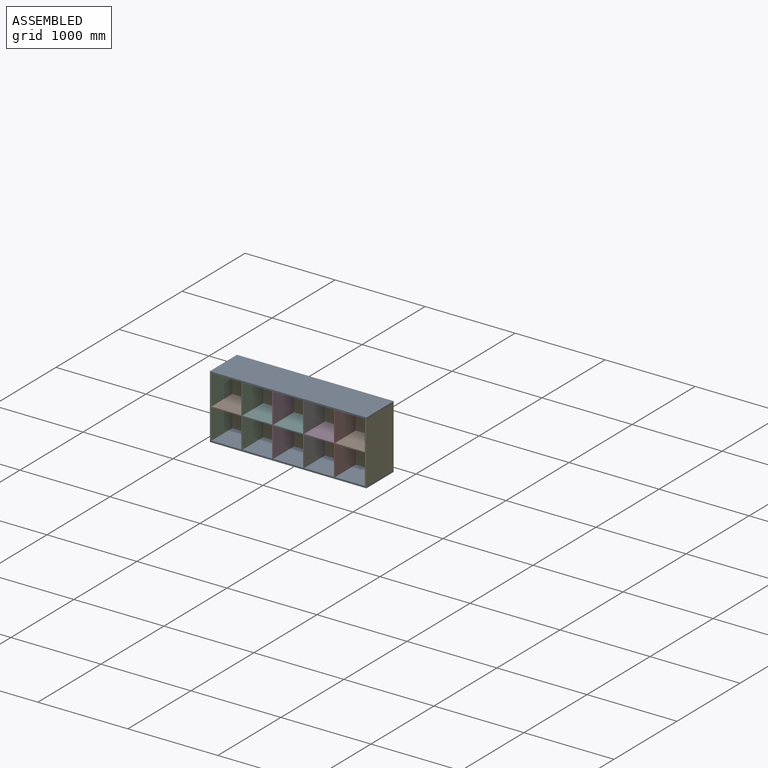
[diagram: assembled view]
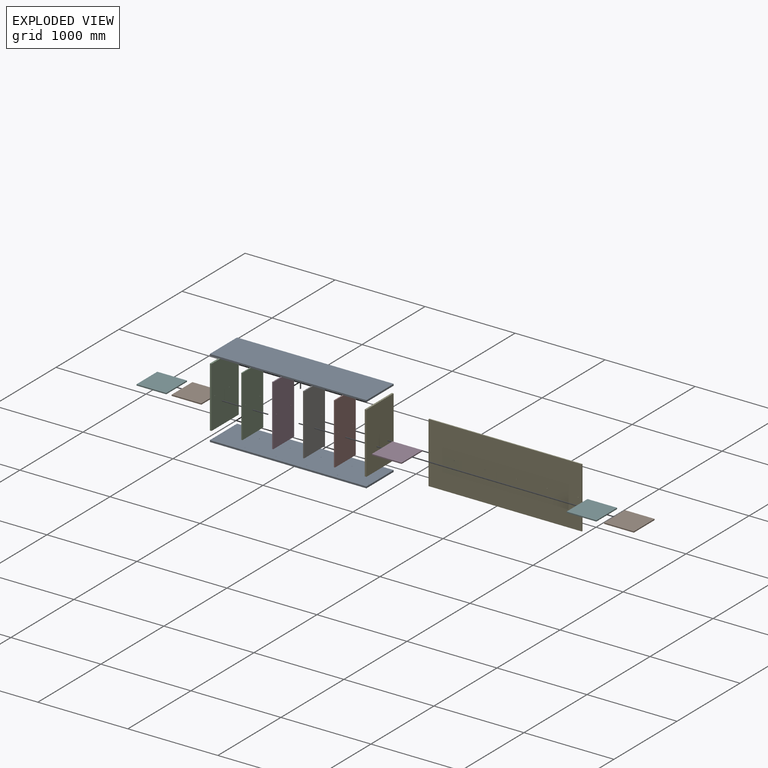
[diagram: exploded view]
GUIDED TOUR — MATED ASSEMBLY (Onshape document 6b621ed1e90acdf6f9625712, AutoMate assembly 6b621ed1e90acdf6f9625712_a6a2d8f0d9f1442e97a787c3_6426224ed07b1c7fa9d9c978_default)

This assembly has 14 components, labeled P0..P13 below (a component is one placed occurrence of a part; the same part can appear more than once), held together by 39 mates. A mate is a constraint between two components; its type names the relative motion it leaves free:
  PLANAR — leaves sliding in the plane through the listed point (normal = the listed direction) and rotation about that normal free,
  SLIDER — leaves translation along the listed axis free.
Axis/direction vectors are unit vectors and 'through' points are millimeter coordinates, both in the assembly's world frame.

MATES
  1. PLANAR "bottom_vshelf_surface": P0 <-> P7, direction (0.000, 0.000, 1.000) through (1018.47, 160.81, 242.39) mm
  2. PLANAR "Planar 2": P4 <-> P8, direction (0.000, 0.000, 1.000) through (1018.47, 281.44, 915.49) mm
  3. PLANAR "bottom_vshelf3_surface": P6 <-> P0, direction (0.000, 0.000, -1.000) through (1189.92, 109.99, 242.39) mm
  4. PLANAR "hshelf_2_surface": P10 <-> P13, direction (1.000, 0.000, 0.000) through (510.47, 109.99, 578.94) mm
  5. SLIDER "hshelf_1_back": P2 <-> P1, axis (1.000, 0.000, 0.000) through (161.22, 224.29, 578.94) mm
  6. SLIDER "bottom_left_front": P2 <-> P0, axis (0.000, 0.000, -1.000) through (158.04, -4.31, 242.39) mm
  7. SLIDER "bottom_vshelf1_back": P0 <-> P10, axis (0.000, 0.000, 1.000) through (504.12, 224.29, 232.86) mm
  8. SLIDER "hshelf_3_front": P11 <-> P5, axis (1.000, 0.000, 0.000) through (850.19, -4.31, 578.94) mm
  9. SLIDER "bottom_vshelf2_back": P11 <-> P0, axis (0.000, 0.000, -1.000) through (847.02, 224.29, 251.91) mm
  10. SLIDER "hshelf_4_back": P6 <-> P3, axis (1.000, 0.000, 0.000) through (1193.09, 224.29, 578.94) mm
  11. PLANAR "hshelf_3_surface": P11 <-> P5, direction (1.000, 0.000, 0.000) through (853.37, 109.99, 578.94) mm
  12. PLANAR "bottom_vshelf1_surface": P0 <-> P10, direction (0.000, 0.000, 1.000) through (1018.47, 160.81, 242.39) mm
  13. PLANAR "hshelf_4_surface": P6 <-> P3, direction (1.000, 0.000, 0.000) through (1196.27, 109.99, 578.94) mm
  14. SLIDER "hshelf_5_rear": P7 <-> P9, axis (1.000, 0.000, 0.000) through (1535.99, 224.29, 578.94) mm
  15. SLIDER "hself_1_front": P2 <-> P1, axis (1.000, 0.000, 0.000) through (161.22, -4.31, 578.94) mm
  16. PLANAR "hshelf_1_surface": P2 <-> P1, direction (1.000, 0.000, 0.000) through (167.57, 160.81, 578.94) mm
  17. SLIDER "Top_right": P12 <-> P8, axis (0.000, 0.000, 1.000) through (1878.89, -4.31, 905.96) mm
  18. SLIDER "bottom_vshelf2_front": P0 <-> P11, axis (0.000, 0.000, 1.000) through (847.02, -4.31, 232.86) mm
  19. PLANAR "Planar 1": P4 <-> P5, direction (0.000, -1.000, 0.000) through (1018.45, 275.09, 578.94) mm
  20. SLIDER "bottom_vshelf3_back": P6 <-> P0, axis (0.000, 0.000, -1.000) through (1189.92, 224.29, 251.91) mm
  21. SLIDER "hshelf_2_back": P10 <-> P13, axis (1.000, 0.000, 0.000) through (507.29, 224.29, 578.94) mm
  22. PLANAR "bottom_vshelf2_surface": P11 <-> P0, direction (0.000, 0.000, -1.000) through (847.02, 109.99, 242.39) mm
  23. SLIDER "hshelf_3_back": P5 <-> P11, axis (-1.000, 0.000, 0.000) through (859.72, 224.29, 578.94) mm
  24. PLANAR "bottom_left_surface": P2 <-> P0, direction (0.000, 0.000, -1.000) through (158.04, 160.79, 242.39) mm
  25. PLANAR "hshelf_5_surface": P7 <-> P9, direction (1.000, 0.000, 0.000) through (1539.17, 109.99, 578.94) mm
  26. SLIDER "hshelf_4_front": P6 <-> P3, axis (1.000, 0.000, 0.000) through (1193.09, -4.31, 578.94) mm
  27. SLIDER "bottom_vshelf1_front": P0 <-> P10, axis (0.000, 0.000, 1.000) through (504.12, -4.31, 232.86) mm
  28. SLIDER "bottom_vshelf3_front": P6 <-> P0, axis (0.000, 0.000, -1.000) through (1189.92, -4.31, 251.91) mm
  29. SLIDER "Top_left": P8 <-> P2, axis (0.000, 0.000, -1.000) through (158.04, -4.31, 925.01) mm
  30. SLIDER "hshelf_5_front": P7 <-> P9, axis (1.000, 0.000, 0.000) through (1535.99, -4.31, 578.94) mm
  31. SLIDER "bottom_vshelf4_back": P7 <-> P0, axis (0.000, 0.000, -1.000) through (1532.82, 224.29, 251.91) mm
  32. SLIDER "bottom_right_back": P0 <-> P12, axis (0.000, 0.000, 1.000) through (1878.89, 160.79, 242.39) mm
  33. SLIDER "bottom_left_back": P2 <-> P0, axis (0.000, 0.000, -1.000) through (158.04, 160.79, 251.91) mm
  34. PLANAR "Top surface": P8 <-> P2, direction (0.000, 0.000, -1.000) through (1018.47, 109.99, 915.49) mm
  35. SLIDER "hshelf_2_front": P10 <-> P13, axis (1.000, 0.000, 0.000) through (507.29, -4.31, 578.94) mm
  36. SLIDER "bottom_right_front": P0 <-> P12, axis (0.000, 0.000, 1.000) through (1878.89, -4.31, 232.86) mm
  37. SLIDER "bottom_vshelf4_front": P0 <-> P7, axis (0.000, 0.000, 1.000) through (1532.82, -4.31, 232.86) mm
  38. PLANAR "Planar 3": P4 <-> P2, direction (-1.000, 0.000, 0.000) through (167.57, 281.44, 578.94) mm
  39. PLANAR "bottom_right_surface": P0 <-> P12, direction (0.000, 0.000, 1.000) through (1018.47, 160.81, 242.39) mm

ASSEMBLY ORDER
  1. P6 — the base component [order verified]
  2. P5 [order verified]
  3. P10 [order verified]
  4. P13 [order verified]
  5. P3 [order verified]
  6. P7 [order verified]
  7. P11 [order verified]
  8. P1 [order verified]
  9. P9 [order verified]
  10. P2 [order verified]
  11. P12 [order verified]
  12. P4 [order verified]
  13. P8 [order verified]
  14. P0 [order verified]
Order-tag legend:
  [order verified] — this step's position reverses a verified removal order: the component was checked to insert without passing through the ones already placed.

Of the 14 components, 13 carry the full construction recipe — the FeatureScript program that regenerates the part's solid from scratch; the rest are supplied as boundary geometry only.
Because this assembly has more than 12 components, the tour below covers the 12 most significant ones individually (every recipe-attached component first, then the largest by part volume), in assembly order; the remaining 2 are summarized together in a grouped section at the end.
Each toured component is shown spotlighted twice — in the assembled view, then in the exploded view, where a leader line traces a displaced component back to its assembled socket (saturated green if recipe-attached, orange if geometry-only; every other component desaturated gray) — followed by its recipe or geometry summary and the mates that hold it.
NOTE — this tour is split across 2 documents so each fits a 32k-token context. This is document 1: the component sections continue in the remaining 1 document, each repeating the header above.
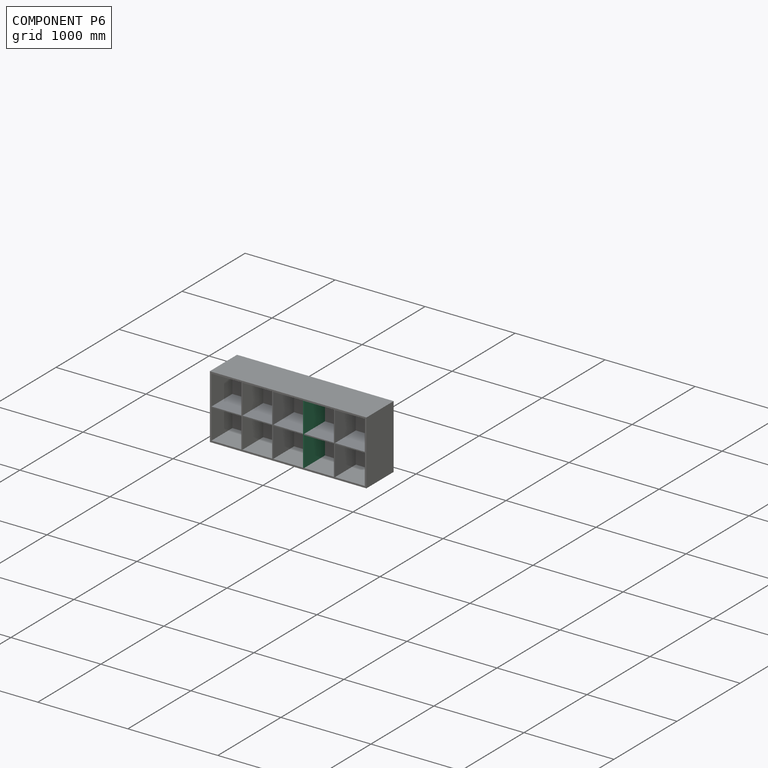
[diagram: component P6 — assembled]
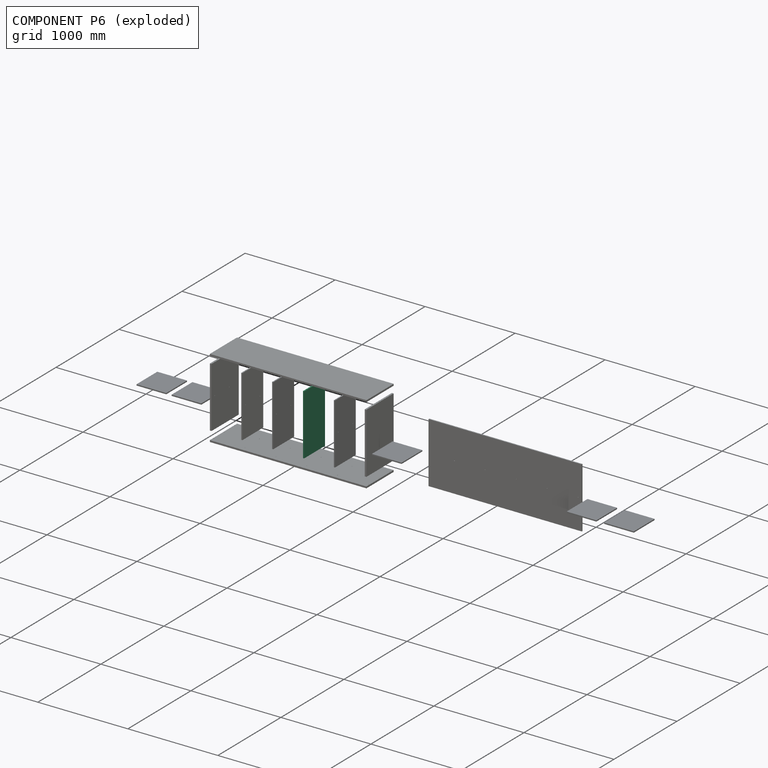
[diagram: component P6 — exploded]
COMPONENT P6 — recipe-attached (CADFS 00973417, mesh-verified: the recipe's output STEP matches this component's geometry to below the mesh-comparison resolution (tessellation chordal tolerance ~1.12 mm)).
Held by: PLANAR mate "bottom_vshelf3_surface" to P0; SLIDER mate "hshelf_4_back" to P3; PLANAR mate "hshelf_4_surface" to P3; SLIDER mate "bottom_vshelf3_back" to P0; SLIDER mate "hshelf_4_front" to P3; SLIDER mate "bottom_vshelf3_front" to P0.
Construction recipe (FeatureScript — the CAD program that rebuilds this solid; sketch coordinates are in the units given by the * unit suffixes, e.g. mm):

FeatureScript 2105;
import(path : "onshape/std/geometry.fs", version : "2105.0");
import(path : "onshape/std/common.fs", version : "2105.0");
const mm = millimeter;
const VERTEX = EntityType.VERTEX;
const EDGE = EntityType.EDGE;
const FACE = EntityType.FACE;
const BODY = EntityType.BODY;
function v(x, y){return vector(x, y);}
function OD(order){return orderDisambiguation(order);}
function OSD(set){return originalSetDisambiguation(set);}
function TD(topology){return topologyDisambiguation(topology);}
function TDD(query){return trueDependencyDisambiguation(query);}
function sQuery(a, b, c) {return sketchEntityQuery(a, b, c);}

annotation { "Feature Type Name" : "Feature", "Feature Type Description" : "" }
export const myFeature = defineFeature(function(context is Context, id is Id, definition is map)
    precondition{}
    {
        {
            var Q0;
            Q0=qCreatedBy(makeId("Top.planeOp"),FACE);
            var sketch = newSketch(context, id + "F0", { "sketchPlane" : qUnion([Q0])});
            skLineSegment(sketch, "E0.bottom", {"start": v(0, 0) * mm, "end": v(12.7, 0) * mm});
            skLineSegment(sketch, "E0.top", {"start": v(0, 330.2) * mm, "end": v(12.7, 330.2) * mm});
            skLineSegment(sketch, "E0.left", {"start": v(0, 0) * mm, "end": v(0, 330.2) * mm});
            skLineSegment(sketch, "E0.right", {"start": v(12.7, 0) * mm, "end": v(12.7, 330.2) * mm});
            skSolve(sketch);
        }
        {
            var Q0;
            Q0=makeQuery(id+"F0.imprint","IMPRINT",FACE,{"disambiguationData":[TD([[makeQuery(id+"F0.imprint","IMPRINT",EDGE,{"derivedFrom":sQuery(id+"F0.wireOp",EDGE,"E0.bottom")}),1.0]])]});
            extrude(context, id + "F1", {"entities" : qUnion([Q0]), "depth" : 673.1 * mm, "offsetDistance" : 25.4 * mm});
        }
        {
            var Q0;
            Q0=makeQuery(id+"F1.opExtrude","CAP_FACE",FACE,{"disambiguationData":[OSD([sQuery(id+"F0.wireOp",EDGE,"E0.bottom"),sQuery(id+"F0.wireOp",EDGE,"E0.top"),sQuery(id+"F0.wireOp",EDGE,"E0.left"),sQuery(id+"F0.wireOp",EDGE,"E0.right")])],"isStart":true});
            var sketch = newSketch(context, id + "F2", { "sketchPlane" : qUnion([Q0])});
            skCircle(sketch, "E1", {"center": v(6.35, -50.8) * mm, "radius": 3.18 * mm});
            skCircle(sketch, "E2", {"center": v(6.35, -279.4) * mm, "radius": 3.18 * mm});
            skSolve(sketch);
        }
        {
            var Q0;
            Q0=qSketchRegion(id+"F2",true);
            extrude(context, id + "F3", {"entities" : qUnion([Q0]), "operationType" : NewBodyOperationType.REMOVE, "oppositeDirection" : true, "depth" : 9.52 * mm, "offsetDistance" : 25.4 * mm});
        }
        {
            var Q0;
            Q0=makeQuery(id+"F1.opExtrude","CAP_FACE",FACE,{"disambiguationData":[OSD([sQuery(id+"F0.wireOp",EDGE,"E0.bottom"),sQuery(id+"F0.wireOp",EDGE,"E0.top"),sQuery(id+"F0.wireOp",EDGE,"E0.left"),sQuery(id+"F0.wireOp",EDGE,"E0.right")])],"isStart":false});
            var sketch = newSketch(context, id + "F4", { "sketchPlane" : qUnion([Q0])});
            skCircle(sketch, "E3", {"center": v(6.35, 279.4) * mm, "radius": 3.18 * mm});
            skCircle(sketch, "E4", {"center": v(6.35, 50.8) * mm, "radius": 3.18 * mm});
            skSolve(sketch);
        }
        {
            var Q0;
            Q0=qSketchRegion(id+"F4",true);
            extrude(context, id + "F5", {"entities" : qUnion([Q0]), "operationType" : NewBodyOperationType.REMOVE, "oppositeDirection" : true, "depth" : 9.52 * mm, "offsetDistance" : 25.4 * mm});
        }
        {
            var Q0;
            Q0=makeQuery(id+"F1.opExtrude","SWEPT_FACE",FACE,{"disambiguationData":[OSD([sQuery(id+"F0.wireOp",EDGE,"E0.left")])]});
            var sketch = newSketch(context, id + "F6", { "sketchPlane" : qUnion([Q0])});
            skCircle(sketch, "E5", {"center": v(-279.4, 336.55) * mm, "radius": 3.18 * mm});
            skCircle(sketch, "E6", {"center": v(-50.8, 336.55) * mm, "radius": 3.18 * mm});
            skSolve(sketch);
        }
        {
            var Q0;
            Q0=makeQuery(id+"F1.opExtrude","SWEPT_FACE",FACE,{"disambiguationData":[OSD([sQuery(id+"F0.wireOp",EDGE,"E0.right")])]});
            var sketch = newSketch(context, id + "F7", { "sketchPlane" : qUnion([Q0])});
            skCircle(sketch, "E7", {"center": v(50.8, 336.55) * mm, "radius": 3.18 * mm});
            skCircle(sketch, "E8", {"center": v(279.4, 336.55) * mm, "radius": 3.18 * mm});
            skSolve(sketch);
        }
        {
            var Q0;
            Q0 = qSketchRegion(id + "F6", true);
            extrude(context, id + "F8", {"entities" : qUnion([Q0]), "operationType" : NewBodyOperationType.REMOVE, "oppositeDirection" : true, "depth" : 3.17 * mm, "offsetDistance" : 25.4 * mm});
        }
        {
            var Q0;
            Q0 = qSketchRegion(id + "F7", true);
            extrude(context, id + "F9", {"entities" : qUnion([Q0]), "operationType" : NewBodyOperationType.REMOVE, "oppositeDirection" : true, "depth" : 3.17 * mm, "offsetDistance" : 25.4 * mm});
        }
    });
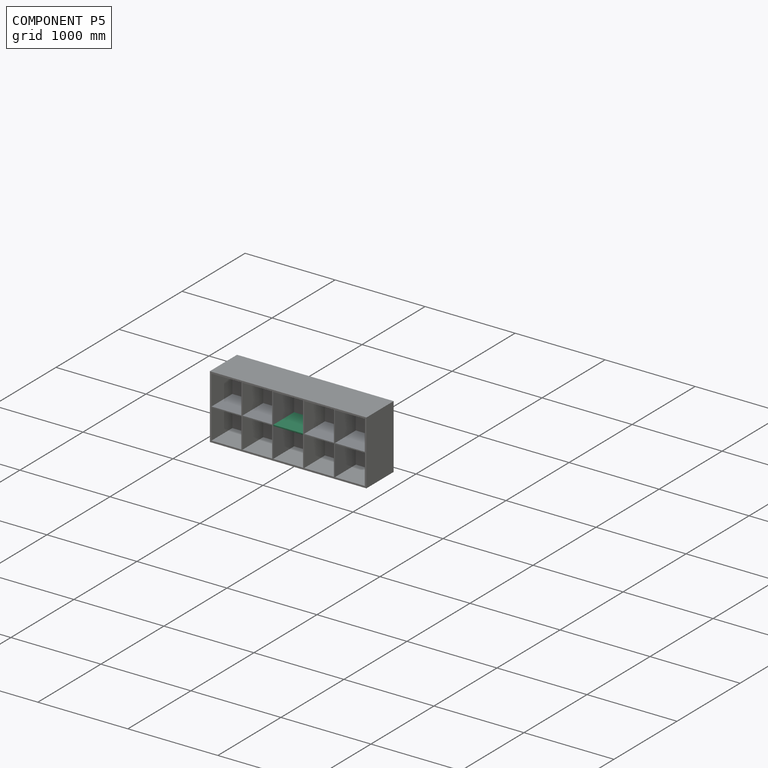
[diagram: component P5 — assembled]
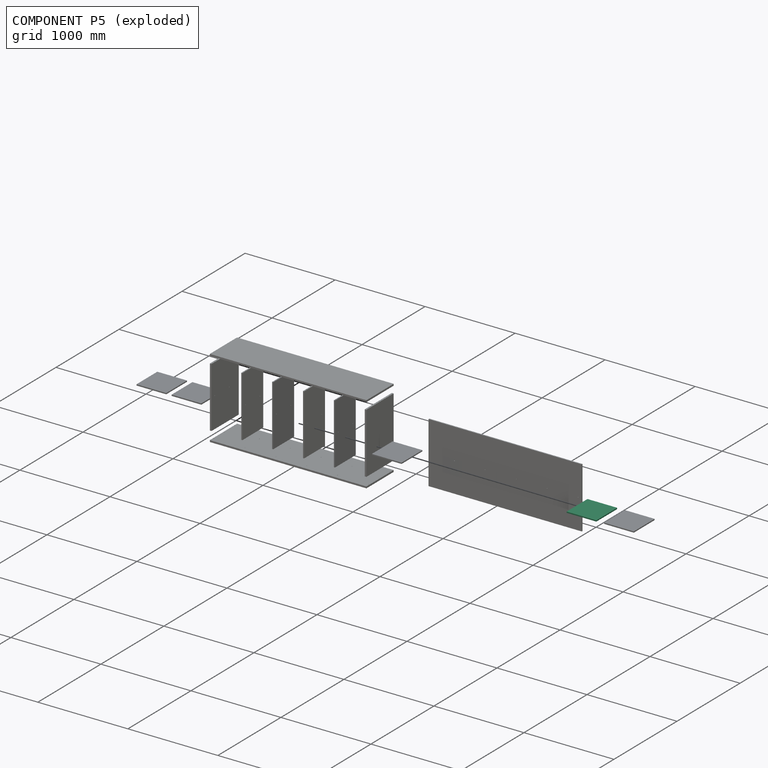
[diagram: component P5 — exploded]
COMPONENT P5 — same part as P1 (CADFS 00973414); its construction recipe is shown at P1.
Held by: SLIDER mate "hshelf_3_front" to P11; PLANAR mate "hshelf_3_surface" to P11; PLANAR mate "Planar 1" to P4; SLIDER mate "hshelf_3_back" to P11.
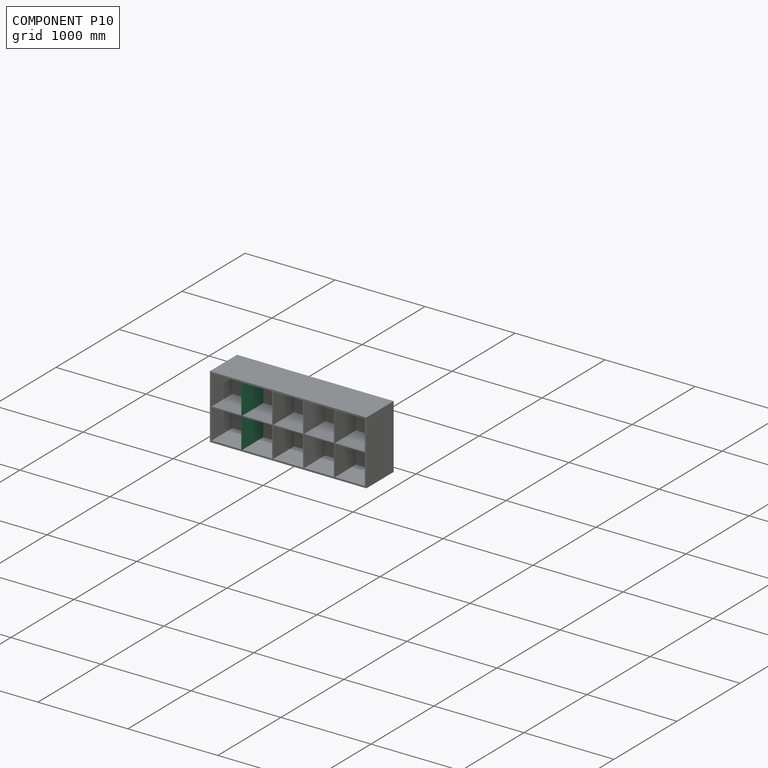
[diagram: component P10 — assembled]
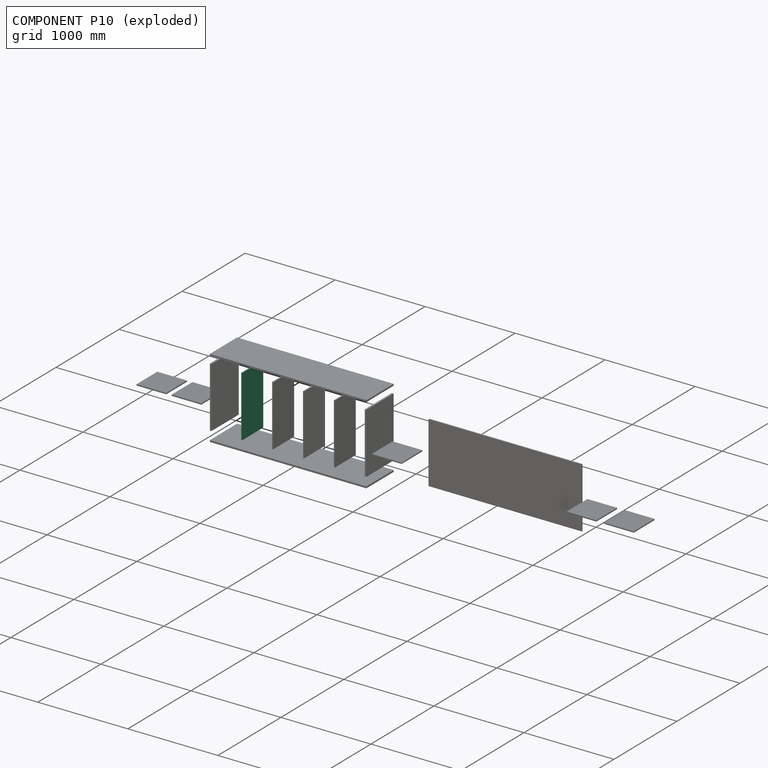
[diagram: component P10 — exploded]
COMPONENT P10 — same part as P6 (CADFS 00973417); its construction recipe is shown at P6.
Held by: PLANAR mate "hshelf_2_surface" to P13; SLIDER mate "bottom_vshelf1_back" to P0; PLANAR mate "bottom_vshelf1_surface" to P0; SLIDER mate "hshelf_2_back" to P13; SLIDER mate "bottom_vshelf1_front" to P0; SLIDER mate "hshelf_2_front" to P13.
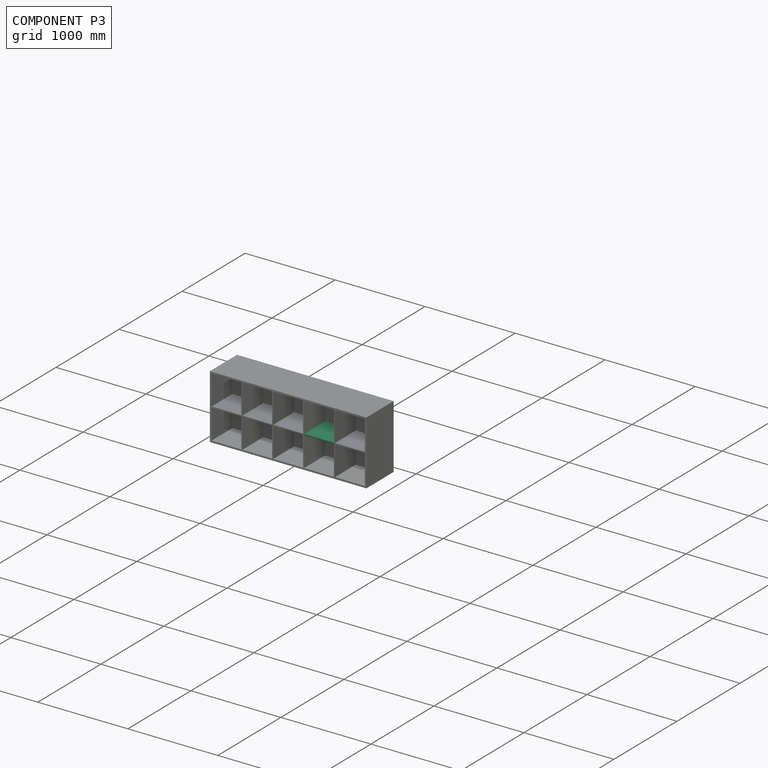
[diagram: component P3 — assembled]
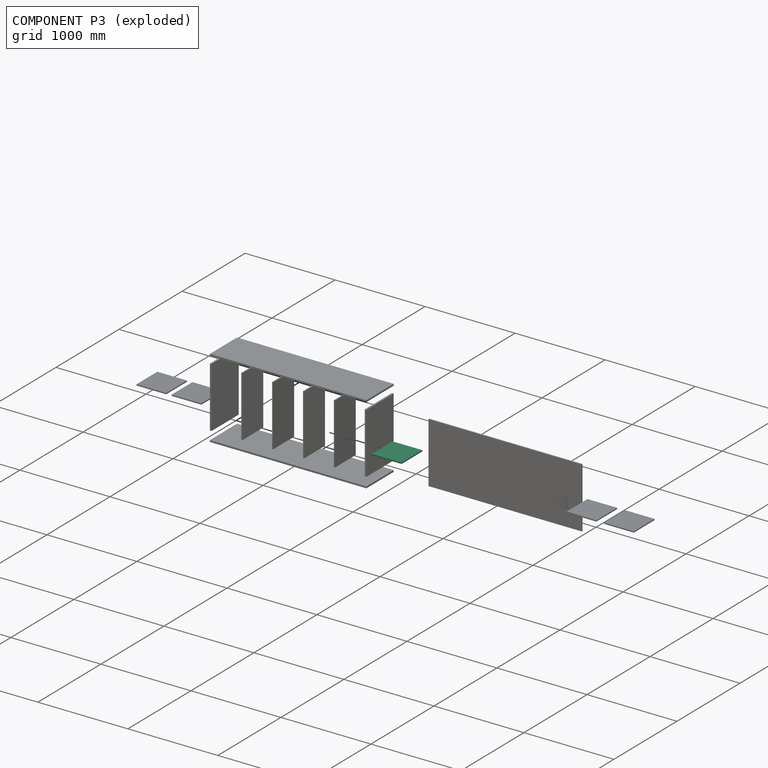
[diagram: component P3 — exploded]
COMPONENT P3 — same part as P1 (CADFS 00973414); its construction recipe is shown at P1.
Held by: SLIDER mate "hshelf_4_back" to P6; PLANAR mate "hshelf_4_surface" to P6; SLIDER mate "hshelf_4_front" to P6.
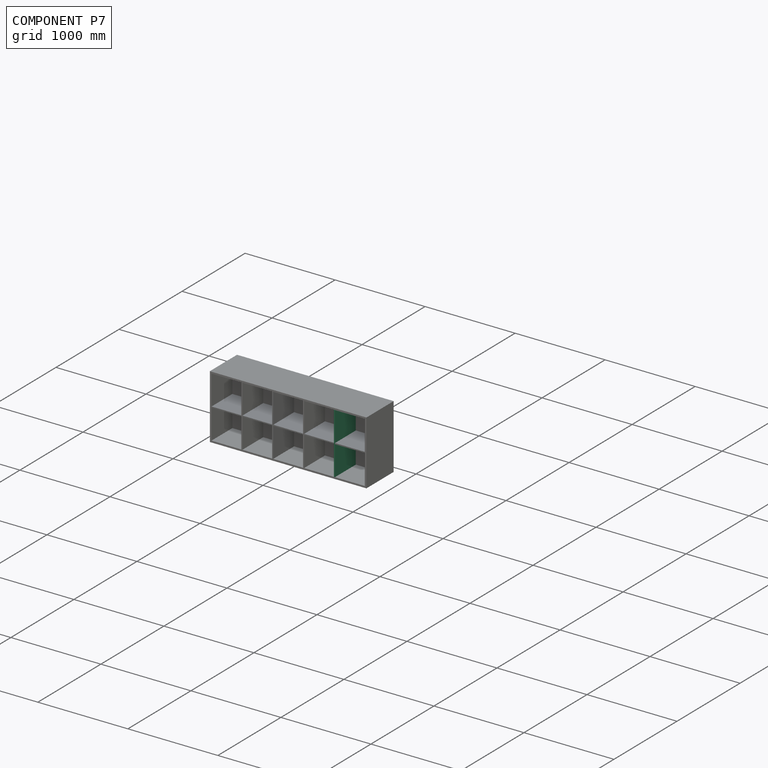
[diagram: component P7 — assembled]
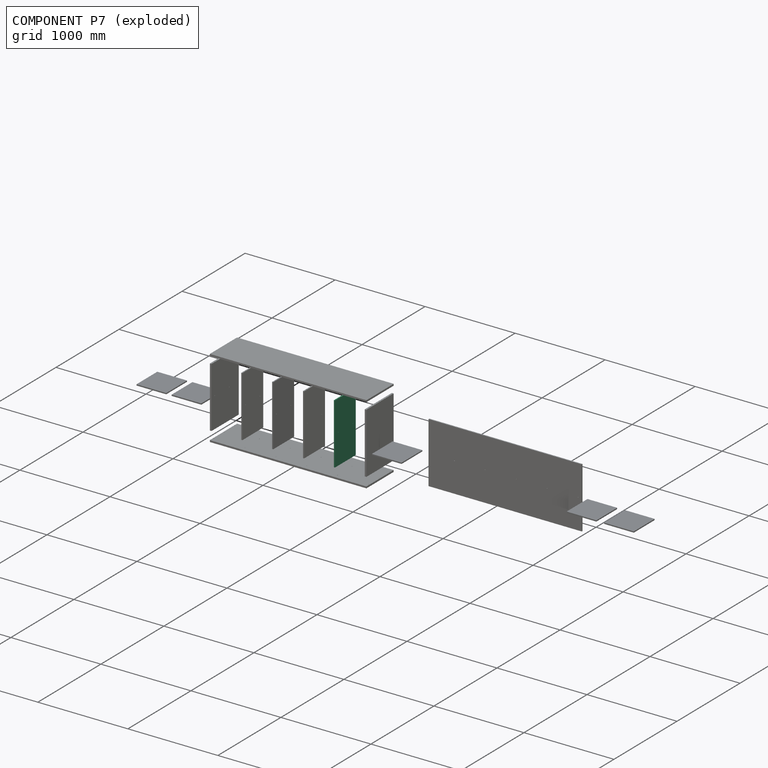
[diagram: component P7 — exploded]
COMPONENT P7 — same part as P6 (CADFS 00973417); its construction recipe is shown at P6.
Held by: PLANAR mate "bottom_vshelf_surface" to P0; SLIDER mate "hshelf_5_rear" to P9; PLANAR mate "hshelf_5_surface" to P9; SLIDER mate "hshelf_5_front" to P9; SLIDER mate "bottom_vshelf4_back" to P0; SLIDER mate "bottom_vshelf4_front" to P0.
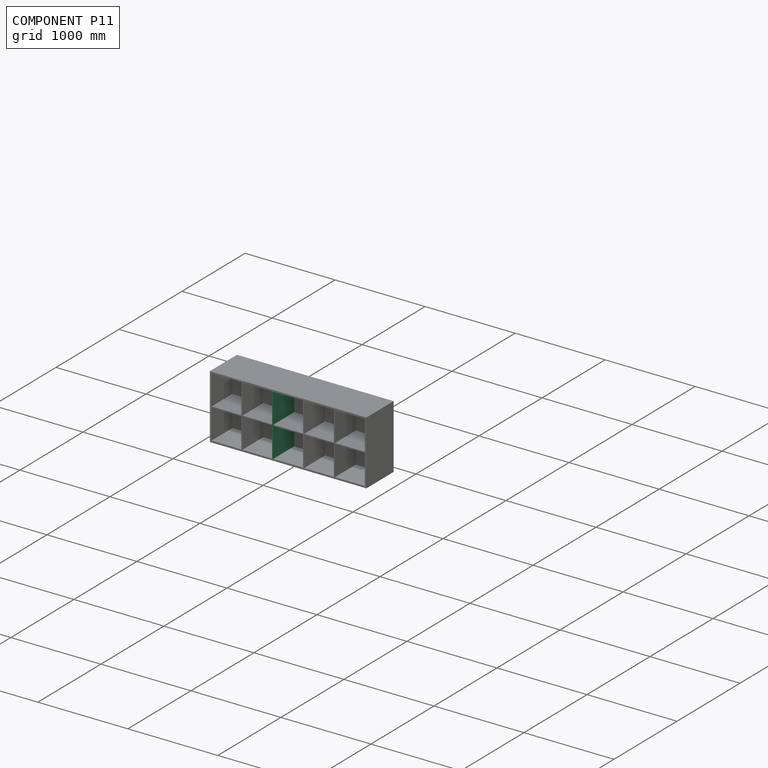
[diagram: component P11 — assembled]
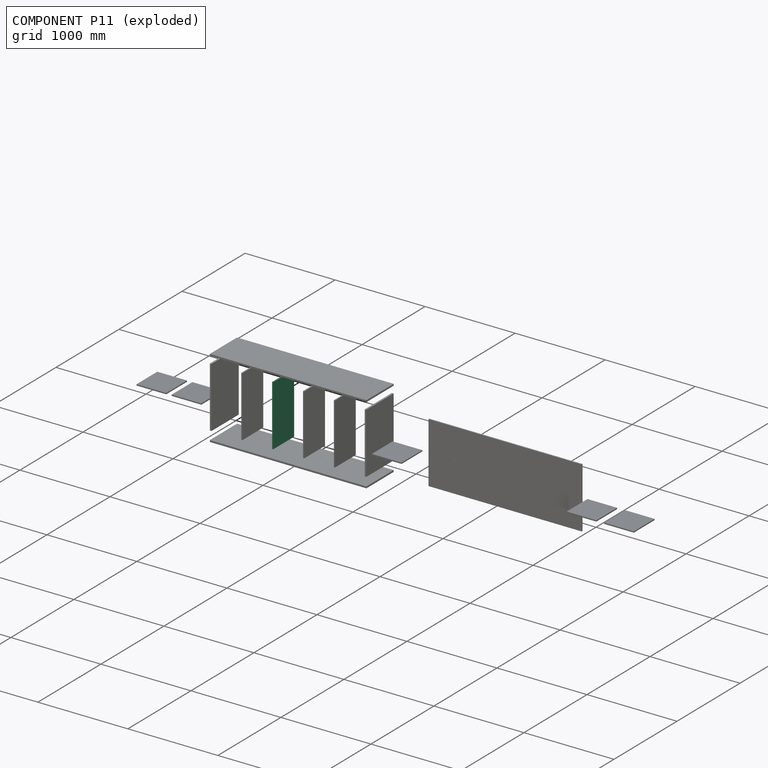
[diagram: component P11 — exploded]
COMPONENT P11 — same part as P6 (CADFS 00973417); its construction recipe is shown at P6.
Held by: SLIDER mate "hshelf_3_front" to P5; SLIDER mate "bottom_vshelf2_back" to P0; PLANAR mate "hshelf_3_surface" to P5; SLIDER mate "bottom_vshelf2_front" to P0; PLANAR mate "bottom_vshelf2_surface" to P0; SLIDER mate "hshelf_3_back" to P5.
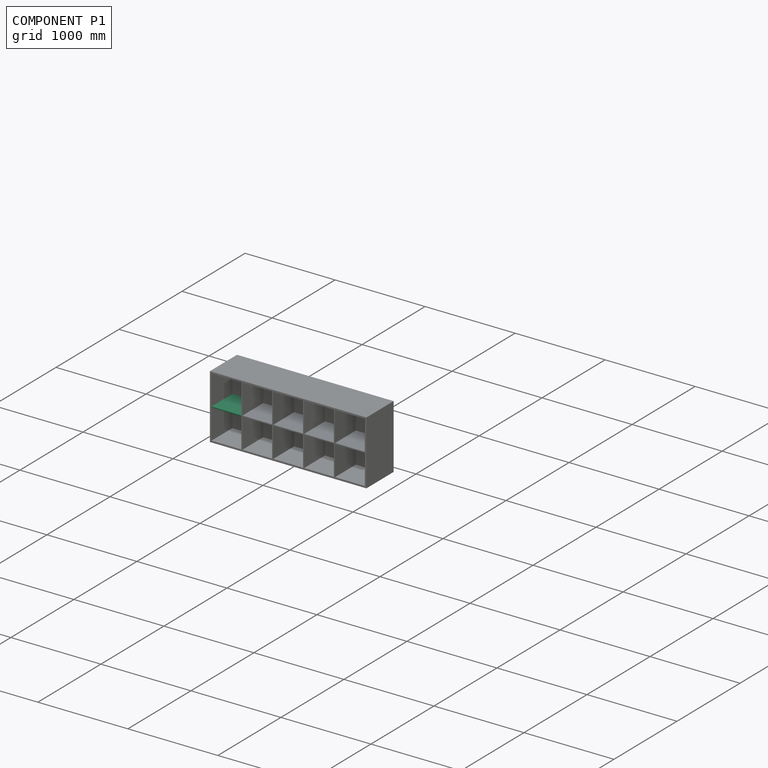
[diagram: component P1 — assembled]
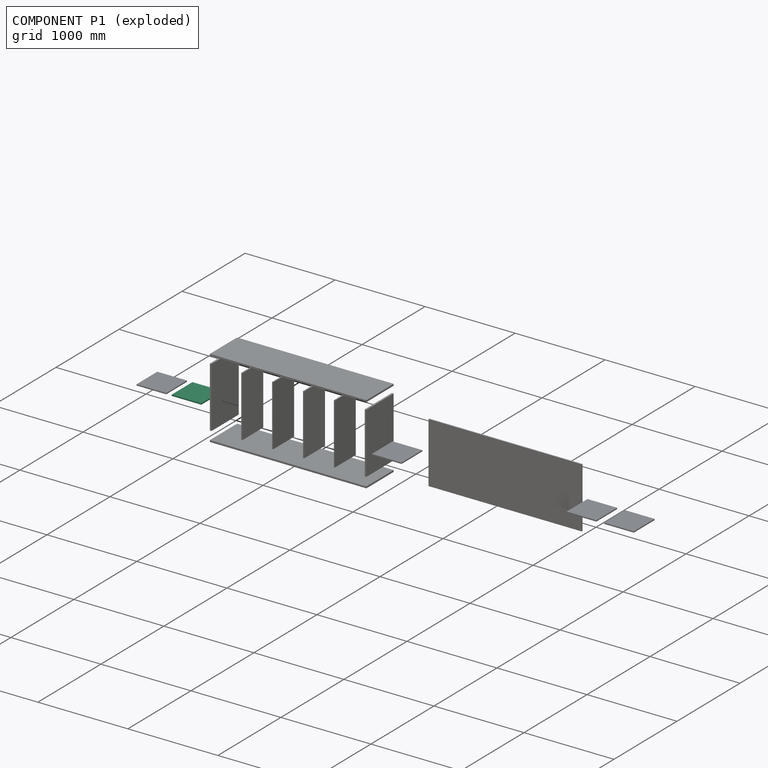
[diagram: component P1 — exploded]
COMPONENT P1 — recipe-attached (CADFS 00973414, mesh-verified: the recipe's output STEP matches this component's geometry to below the mesh-comparison resolution (tessellation chordal tolerance ~0.701 mm)).
Held by: SLIDER mate "hshelf_1_back" to P2; SLIDER mate "hself_1_front" to P2; PLANAR mate "hshelf_1_surface" to P2.
Construction recipe (FeatureScript — the CAD program that rebuilds this solid; sketch coordinates are in the units given by the * unit suffixes, e.g. mm):

FeatureScript 2105;
import(path : "onshape/std/geometry.fs", version : "2105.0");
import(path : "onshape/std/common.fs", version : "2105.0");
const mm = millimeter;
const VERTEX = EntityType.VERTEX;
const EDGE = EntityType.EDGE;
const FACE = EntityType.FACE;
const BODY = EntityType.BODY;
function v(x, y){return vector(x, y);}
function OD(order){return orderDisambiguation(order);}
function OSD(set){return originalSetDisambiguation(set);}
function TD(topology){return topologyDisambiguation(topology);}
function TDD(query){return trueDependencyDisambiguation(query);}
function sQuery(a, b, c) {return sketchEntityQuery(a, b, c);}

annotation { "Feature Type Name" : "Feature", "Feature Type Description" : "" }
export const myFeature = defineFeature(function(context is Context, id is Id, definition is map)
    precondition{}
    {
        {
            var Q0;
            Q0=qCreatedBy(makeId("Front.planeOp"),FACE);
            var sketch = newSketch(context, id + "F0", { "sketchPlane" : qUnion([Q0])});
            skLineSegment(sketch, "E0.bottom", {"start": v(0, 12.7) * mm, "end": v(330.2, 12.7) * mm});
            skLineSegment(sketch, "E0.top", {"start": v(0, 0) * mm, "end": v(330.2, 0) * mm});
            skLineSegment(sketch, "E0.left", {"start": v(0, 12.7) * mm, "end": v(0, 0) * mm});
            skLineSegment(sketch, "E0.right", {"start": v(330.2, 12.7) * mm, "end": v(330.2, 0) * mm});
            skSolve(sketch);
        }
        {
            var Q0;
            Q0=qSketchRegion(id+"F0",true);
            extrude(context, id + "F1", {"entities" : qUnion([Q0]), "oppositeDirection" : true, "depth" : 330.2 * mm, "offsetDistance" : 25.4 * mm});
        }
        {
            var Q0;
            Q0=makeQuery(id+"F1.opExtrude","SWEPT_FACE",FACE,{"disambiguationData":[OSD([sQuery(id+"F0.wireOp",EDGE,"E0.top")])]});
            var sketch = newSketch(context, id + "F2", { "sketchPlane" : qUnion([Q0])});
            skLineSegment(sketch, "E1.bottom", {"start": v(292.1, -292.1) * mm, "end": v(38.1, -292.1) * mm});
            skLineSegment(sketch, "E1.top", {"start": v(292.1, -38.1) * mm, "end": v(38.1, -38.1) * mm});
            skLineSegment(sketch, "E1.left", {"start": v(292.1, -292.1) * mm, "end": v(292.1, -38.1) * mm});
            skLineSegment(sketch, "E1.right", {"start": v(38.1, -292.1) * mm, "end": v(38.1, -38.1) * mm});
            skLineSegment(sketch, "E2.bottom", {"start": v(282.58, -282.57) * mm, "end": v(47.63, -282.57) * mm});
            skLineSegment(sketch, "E2.top", {"start": v(282.57, -47.63) * mm, "end": v(47.62, -47.63) * mm});
            skLineSegment(sketch, "E2.left", {"start": v(282.58, -282.57) * mm, "end": v(282.57, -47.62) * mm});
            skLineSegment(sketch, "E2.right", {"start": v(47.63, -282.58) * mm, "end": v(47.62, -47.63) * mm});
            skLineSegment(sketch, "E3.bottom", {"start": v(292.1, -330.2) * mm, "end": v(282.58, -330.2) * mm});
            skLineSegment(sketch, "E3.top", {"start": v(292.1, -292.1) * mm, "end": v(282.58, -292.1) * mm});
            skLineSegment(sketch, "E3.left", {"start": v(292.1, -330.2) * mm, "end": v(292.1, -292.1) * mm});
            skLineSegment(sketch, "E3.right", {"start": v(282.58, -330.2) * mm, "end": v(282.58, -292.1) * mm});
            skSolve(sketch);
        }
        {
            var Q0;
            Q0=qSketchRegion(id+"F2",true);
            extrude(context, id + "F3", {"entities" : qUnion([Q0]), "operationType" : NewBodyOperationType.REMOVE, "oppositeDirection" : true, "depth" : 3.17 * mm, "offsetDistance" : 25.4 * mm});
        }
        {
            var Q0;
            Q0=makeQuery(id+"F1.opExtrude","SWEPT_FACE",FACE,{"disambiguationData":[OSD([sQuery(id+"F0.wireOp",EDGE,"E0.left")])]});
            var sketch = newSketch(context, id + "F4", { "sketchPlane" : qUnion([Q0])});
            skCircle(sketch, "E4", {"center": v(-279.4, 6.35) * mm, "radius": 3.18 * mm});
            skCircle(sketch, "E5", {"center": v(-50.8, 6.35) * mm, "radius": 3.18 * mm});
            skSolve(sketch);
        }
        {
            var Q0;
            Q0 = qSketchRegion(id + "F4", true);
            extrude(context, id + "F5", {"entities" : qUnion([Q0]), "operationType" : NewBodyOperationType.REMOVE, "oppositeDirection" : true, "depth" : 6.35 * mm, "offsetDistance" : 25.4 * mm});
        }
        {
            var Q0;
            Q0=makeQuery(id+"F1.opExtrude","SWEPT_FACE",FACE,{"disambiguationData":[OSD([sQuery(id+"F0.wireOp",EDGE,"E0.right")])]});
            var sketch = newSketch(context, id + "F6", { "sketchPlane" : qUnion([Q0])});
            skCircle(sketch, "E6", {"center": v(50.8, 6.35) * mm, "radius": 3.18 * mm});
            skCircle(sketch, "E7", {"center": v(279.4, 6.35) * mm, "radius": 3.18 * mm});
            skSolve(sketch);
        }
        {
            var Q0;
            Q0 = qSketchRegion(id + "F6", true);
            extrude(context, id + "F7", {"entities" : qUnion([Q0]), "operationType" : NewBodyOperationType.REMOVE, "oppositeDirection" : true, "depth" : 6.35 * mm, "offsetDistance" : 25.4 * mm});
        }
    });
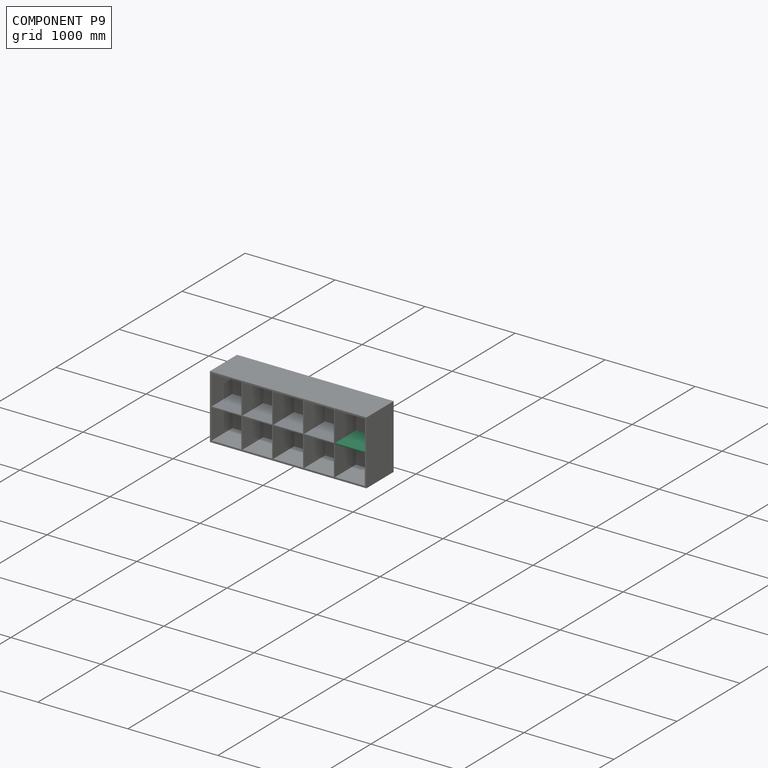
[diagram: component P9 — assembled]
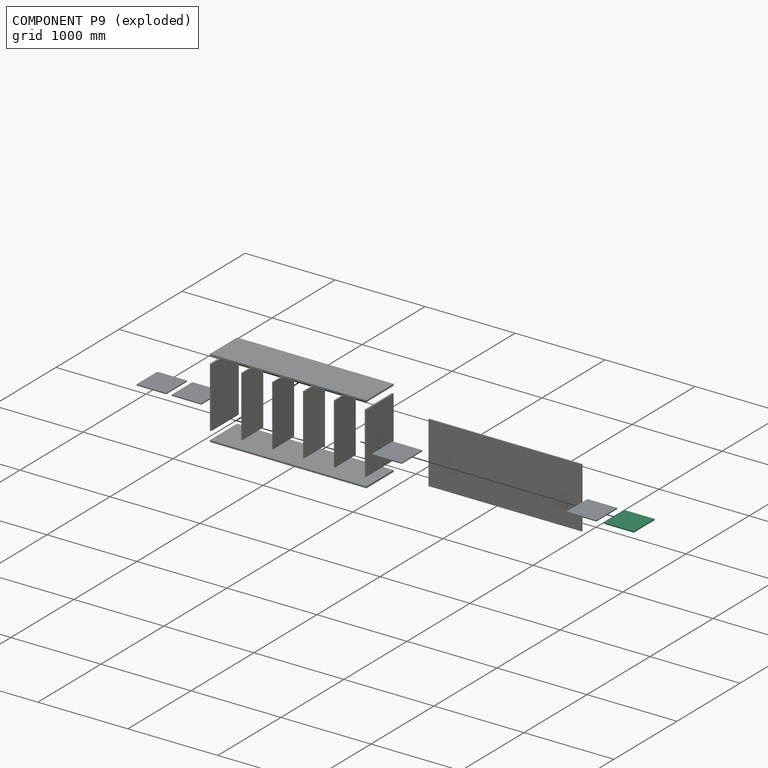
[diagram: component P9 — exploded]
COMPONENT P9 — same part as P1 (CADFS 00973414); its construction recipe is shown at P1.
Held by: SLIDER mate "hshelf_5_rear" to P7; PLANAR mate "hshelf_5_surface" to P7; SLIDER mate "hshelf_5_front" to P7.
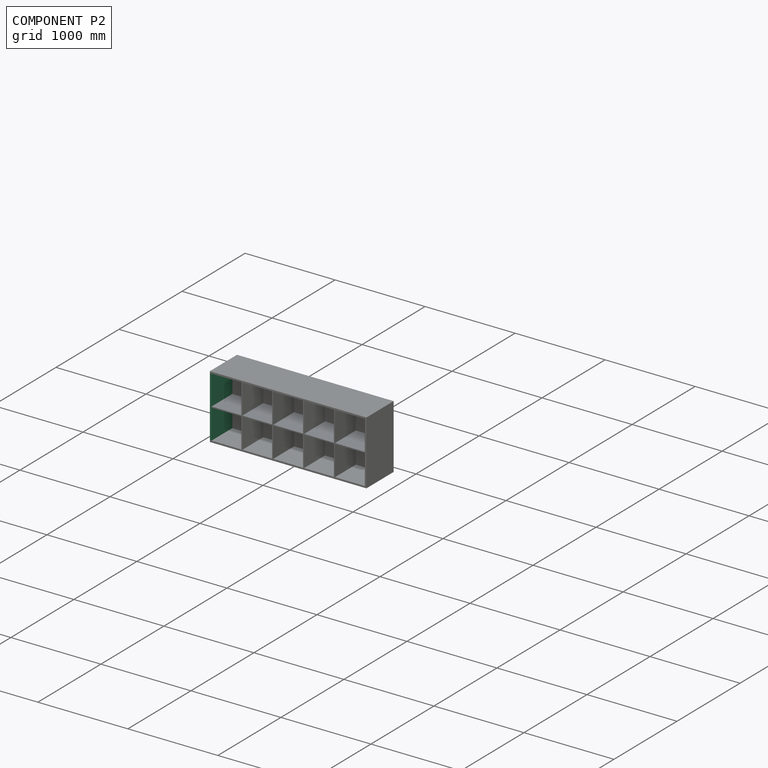
[diagram: component P2 — assembled]
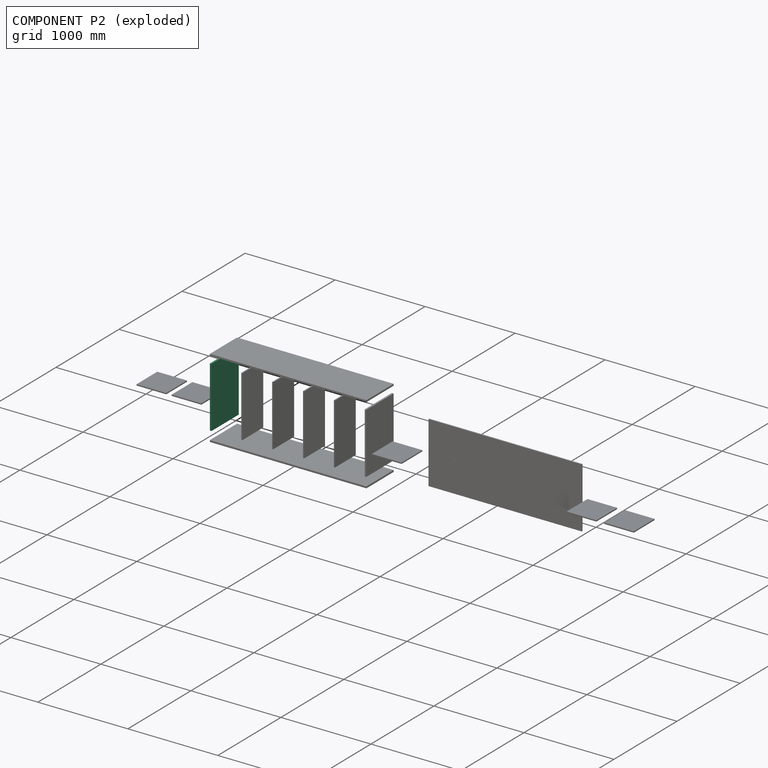
[diagram: component P2 — exploded]
COMPONENT P2 — recipe-attached (CADFS 00973415, mesh-verified: the recipe's output STEP matches this component's geometry to below the mesh-comparison resolution (tessellation chordal tolerance ~1.2 mm)).
Held by: SLIDER mate "hshelf_1_back" to P1; SLIDER mate "bottom_left_front" to P0; SLIDER mate "hself_1_front" to P1; PLANAR mate "hshelf_1_surface" to P1; PLANAR mate "bottom_left_surface" to P0; SLIDER mate "Top_left" to P8; SLIDER mate "bottom_left_back" to P0; PLANAR mate "Top surface" to P8; PLANAR mate "Planar 3" to P4.
Construction recipe (FeatureScript — the CAD program that rebuilds this solid; sketch coordinates are in the units given by the * unit suffixes, e.g. mm):

FeatureScript 2105;
import(path : "onshape/std/geometry.fs", version : "2105.0");
import(path : "onshape/std/common.fs", version : "2105.0");
const mm = millimeter;
const VERTEX = EntityType.VERTEX;
const EDGE = EntityType.EDGE;
const FACE = EntityType.FACE;
const BODY = EntityType.BODY;
function v(x, y){return vector(x, y);}
function OD(order){return orderDisambiguation(order);}
function OSD(set){return originalSetDisambiguation(set);}
function TD(topology){return topologyDisambiguation(topology);}
function TDD(query){return trueDependencyDisambiguation(query);}
function sQuery(a, b, c) {return sketchEntityQuery(a, b, c);}

annotation { "Feature Type Name" : "Feature", "Feature Type Description" : "" }
export const myFeature = defineFeature(function(context is Context, id is Id, definition is map)
    precondition{}
    {
        {
            var Q0;
            Q0=qCreatedBy(makeId("Top.planeOp"),FACE);
            var sketch = newSketch(context, id + "F0", { "sketchPlane" : qUnion([Q0])});
            skLineSegment(sketch, "E0.bottom", {"start": v(0, 0) * mm, "end": v(19.05, 0) * mm});
            skLineSegment(sketch, "E0.top", {"start": v(0, 431.8) * mm, "end": v(19.05, 431.8) * mm});
            skLineSegment(sketch, "E0.left", {"start": v(0, 0) * mm, "end": v(0, 431.8) * mm});
            skLineSegment(sketch, "E0.right", {"start": v(19.05, 0) * mm, "end": v(19.05, 431.8) * mm});
            skSolve(sketch);
        }
        {
            var Q0;
            Q0=makeQuery(id+"F0.imprint","IMPRINT",FACE,{"disambiguationData":[TD([[makeQuery(id+"F0.imprint","IMPRINT",EDGE,{"derivedFrom":sQuery(id+"F0.wireOp",EDGE,"E0.bottom")}),1.0]])]});
            extrude(context, id + "F1", {"entities" : qUnion([Q0]), "depth" : 673.1 * mm, "offsetDistance" : 25.4 * mm});
        }
        {
            var Q0;
            Q0=makeQuery(id+"F1.opExtrude","CAP_FACE",FACE,{"disambiguationData":[OSD([sQuery(id+"F0.wireOp",EDGE,"E0.bottom"),sQuery(id+"F0.wireOp",EDGE,"E0.top"),sQuery(id+"F0.wireOp",EDGE,"E0.left"),sQuery(id+"F0.wireOp",EDGE,"E0.right")])],"isStart":true});
            var sketch = newSketch(context, id + "F2", { "sketchPlane" : qUnion([Q0])});
            skCircle(sketch, "E1", {"center": v(9.53, -50.8) * mm, "radius": 3.18 * mm});
            skCircle(sketch, "E2", {"center": v(9.53, -215.9) * mm, "radius": 3.18 * mm});
            skCircle(sketch, "E3", {"center": v(9.53, -381) * mm, "radius": 3.18 * mm});
            skSolve(sketch);
        }
        {
            var Q0;
            Q0 = qSketchRegion(id + "F2", true);
            extrude(context, id + "F3", {"entities" : qUnion([Q0]), "operationType" : NewBodyOperationType.REMOVE, "oppositeDirection" : true, "depth" : 9.52 * mm, "offsetDistance" : 25.4 * mm});
        }
        {
            var Q0;
            Q0=makeQuery(id+"F1.opExtrude","CAP_FACE",FACE,{"disambiguationData":[OSD([sQuery(id+"F0.wireOp",EDGE,"E0.bottom"),sQuery(id+"F0.wireOp",EDGE,"E0.top"),sQuery(id+"F0.wireOp",EDGE,"E0.left"),sQuery(id+"F0.wireOp",EDGE,"E0.right")])],"isStart":false});
            var sketch = newSketch(context, id + "F4", { "sketchPlane" : qUnion([Q0])});
            skCircle(sketch, "E4", {"center": v(9.52, 381) * mm, "radius": 3.18 * mm});
            skCircle(sketch, "E5", {"center": v(9.52, 215.9) * mm, "radius": 3.18 * mm});
            skCircle(sketch, "E6", {"center": v(9.52, 50.8) * mm, "radius": 3.18 * mm});
            skSolve(sketch);
        }
        {
            var Q0;
            Q0 = qSketchRegion(id + "F4", true);
            extrude(context, id + "F5", {"entities" : qUnion([Q0]), "operationType" : NewBodyOperationType.REMOVE, "oppositeDirection" : true, "depth" : 9.52 * mm, "offsetDistance" : 25.4 * mm});
        }
        {
            var Q0;
            Q0=makeQuery(id+"F1.opExtrude","SWEPT_FACE",FACE,{"disambiguationData":[OSD([sQuery(id+"F0.wireOp",EDGE,"E0.right")])]});
            var sketch = newSketch(context, id + "F6", { "sketchPlane" : qUnion([Q0])});
            skCircle(sketch, "E7", {"center": v(50.8, 336.55) * mm, "radius": 3.18 * mm});
            skCircle(sketch, "E8", {"center": v(279.4, 336.55) * mm, "radius": 3.18 * mm});
            skSolve(sketch);
        }
        {
            var Q0;
            Q0 = qSketchRegion(id + "F6", true);
            extrude(context, id + "F7", {"entities" : qUnion([Q0]), "operationType" : NewBodyOperationType.REMOVE, "oppositeDirection" : true, "depth" : 6.35 * mm, "offsetDistance" : 25.4 * mm});
        }
    });
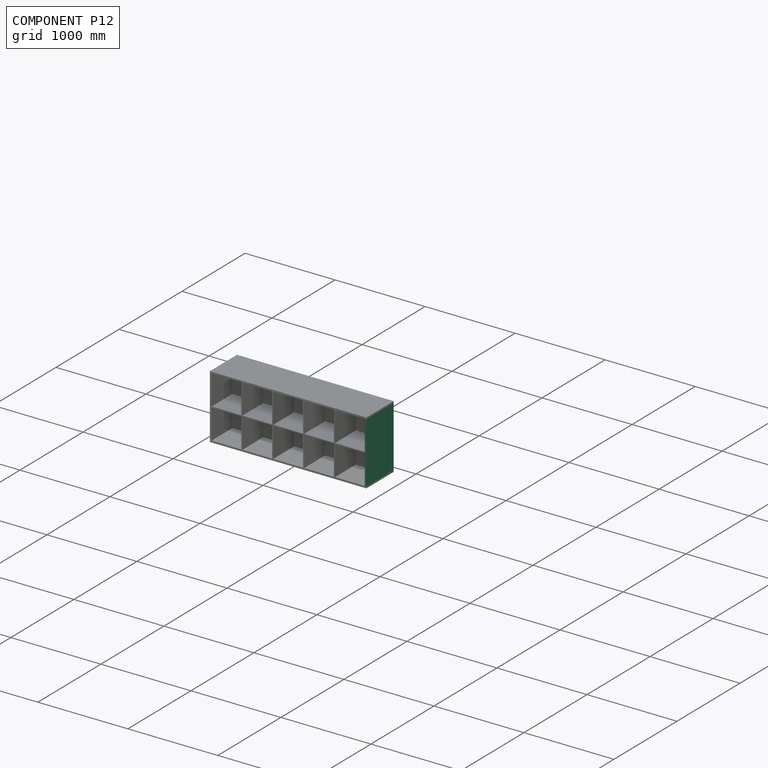
[diagram: component P12 — assembled]
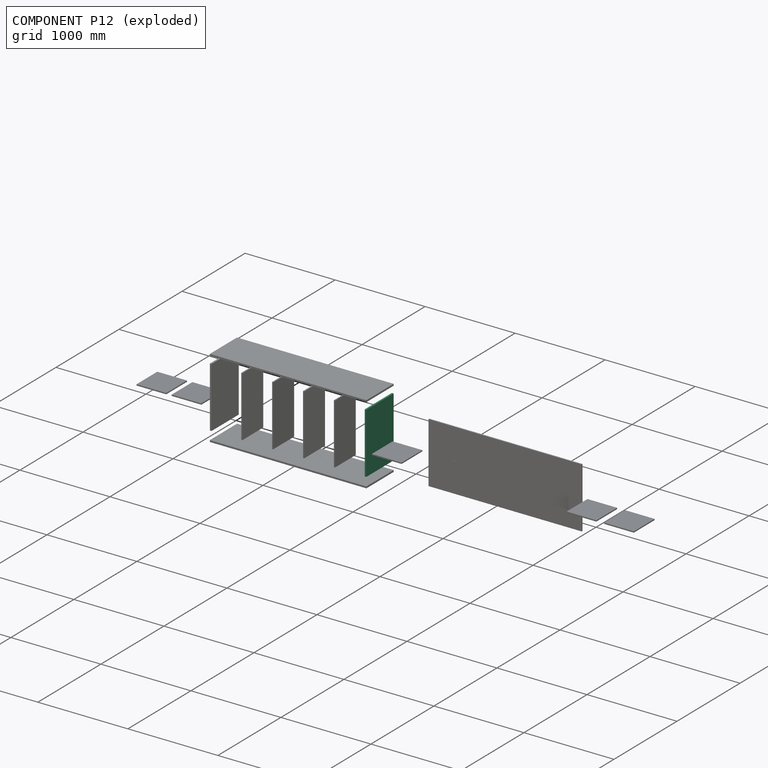
[diagram: component P12 — exploded]
COMPONENT P12 — recipe-attached (CADFS 00973415, mesh-verified: the recipe's output STEP matches this component's geometry to below the mesh-comparison resolution (tessellation chordal tolerance ~1.2 mm)).
Held by: SLIDER mate "Top_right" to P8; SLIDER mate "bottom_right_back" to P0; SLIDER mate "bottom_right_front" to P0; PLANAR mate "bottom_right_surface" to P0.
Construction recipe (FeatureScript — the CAD program that rebuilds this solid; sketch coordinates are in the units given by the * unit suffixes, e.g. mm):

FeatureScript 2105;
import(path : "onshape/std/geometry.fs", version : "2105.0");
import(path : "onshape/std/common.fs", version : "2105.0");
const mm = millimeter;
const VERTEX = EntityType.VERTEX;
const EDGE = EntityType.EDGE;
const FACE = EntityType.FACE;
const BODY = EntityType.BODY;
function v(x, y){return vector(x, y);}
function OD(order){return orderDisambiguation(order);}
function OSD(set){return originalSetDisambiguation(set);}
function TD(topology){return topologyDisambiguation(topology);}
function TDD(query){return trueDependencyDisambiguation(query);}
function sQuery(a, b, c) {return sketchEntityQuery(a, b, c);}

annotation { "Feature Type Name" : "Feature", "Feature Type Description" : "" }
export const myFeature = defineFeature(function(context is Context, id is Id, definition is map)
    precondition{}
    {
        {
            var Q0;
            Q0=qCreatedBy(makeId("Top.planeOp"),FACE);
            var sketch = newSketch(context, id + "F0", { "sketchPlane" : qUnion([Q0])});
            skLineSegment(sketch, "E0.bottom", {"start": v(0, 0) * mm, "end": v(19.05, 0) * mm});
            skLineSegment(sketch, "E0.top", {"start": v(0, 431.8) * mm, "end": v(19.05, 431.8) * mm});
            skLineSegment(sketch, "E0.left", {"start": v(0, 0) * mm, "end": v(0, 431.8) * mm});
            skLineSegment(sketch, "E0.right", {"start": v(19.05, 0) * mm, "end": v(19.05, 431.8) * mm});
            skSolve(sketch);
        }
        {
            var Q0;
            Q0=makeQuery(id+"F0.imprint","IMPRINT",FACE,{"disambiguationData":[TD([[makeQuery(id+"F0.imprint","IMPRINT",EDGE,{"derivedFrom":sQuery(id+"F0.wireOp",EDGE,"E0.bottom")}),1.0]])]});
            extrude(context, id + "F1", {"entities" : qUnion([Q0]), "depth" : 673.1 * mm, "offsetDistance" : 25.4 * mm});
        }
        {
            var Q0;
            Q0=makeQuery(id+"F1.opExtrude","CAP_FACE",FACE,{"disambiguationData":[OSD([sQuery(id+"F0.wireOp",EDGE,"E0.bottom"),sQuery(id+"F0.wireOp",EDGE,"E0.top"),sQuery(id+"F0.wireOp",EDGE,"E0.left"),sQuery(id+"F0.wireOp",EDGE,"E0.right")])],"isStart":true});
            var sketch = newSketch(context, id + "F2", { "sketchPlane" : qUnion([Q0])});
            skCircle(sketch, "E1", {"center": v(9.53, -50.8) * mm, "radius": 3.18 * mm});
            skCircle(sketch, "E2", {"center": v(9.53, -215.9) * mm, "radius": 3.18 * mm});
            skCircle(sketch, "E3", {"center": v(9.53, -381) * mm, "radius": 3.18 * mm});
            skSolve(sketch);
        }
        {
            var Q0;
            Q0 = qSketchRegion(id + "F2", true);
            extrude(context, id + "F3", {"entities" : qUnion([Q0]), "operationType" : NewBodyOperationType.REMOVE, "oppositeDirection" : true, "depth" : 9.52 * mm, "offsetDistance" : 25.4 * mm});
        }
        {
            var Q0;
            Q0=makeQuery(id+"F1.opExtrude","CAP_FACE",FACE,{"disambiguationData":[OSD([sQuery(id+"F0.wireOp",EDGE,"E0.bottom"),sQuery(id+"F0.wireOp",EDGE,"E0.top"),sQuery(id+"F0.wireOp",EDGE,"E0.left"),sQuery(id+"F0.wireOp",EDGE,"E0.right")])],"isStart":false});
            var sketch = newSketch(context, id + "F4", { "sketchPlane" : qUnion([Q0])});
            skCircle(sketch, "E4", {"center": v(9.52, 381) * mm, "radius": 3.18 * mm});
            skCircle(sketch, "E5", {"center": v(9.52, 215.9) * mm, "radius": 3.18 * mm});
            skCircle(sketch, "E6", {"center": v(9.52, 50.8) * mm, "radius": 3.18 * mm});
            skSolve(sketch);
        }
        {
            var Q0;
            Q0 = qSketchRegion(id + "F4", true);
            extrude(context, id + "F5", {"entities" : qUnion([Q0]), "operationType" : NewBodyOperationType.REMOVE, "oppositeDirection" : true, "depth" : 9.52 * mm, "offsetDistance" : 25.4 * mm});
        }
        {
            var Q0;
            Q0=makeQuery(id+"F1.opExtrude","SWEPT_FACE",FACE,{"disambiguationData":[OSD([sQuery(id+"F0.wireOp",EDGE,"E0.right")])]});
            var sketch = newSketch(context, id + "F6", { "sketchPlane" : qUnion([Q0])});
            skCircle(sketch, "E7", {"center": v(50.8, 336.55) * mm, "radius": 3.18 * mm});
            skCircle(sketch, "E8", {"center": v(279.4, 336.55) * mm, "radius": 3.18 * mm});
            skSolve(sketch);
        }
        {
            var Q0;
            Q0 = qSketchRegion(id + "F6", true);
            extrude(context, id + "F7", {"entities" : qUnion([Q0]), "operationType" : NewBodyOperationType.REMOVE, "oppositeDirection" : true, "depth" : 6.35 * mm, "offsetDistance" : 25.4 * mm});
        }
    });
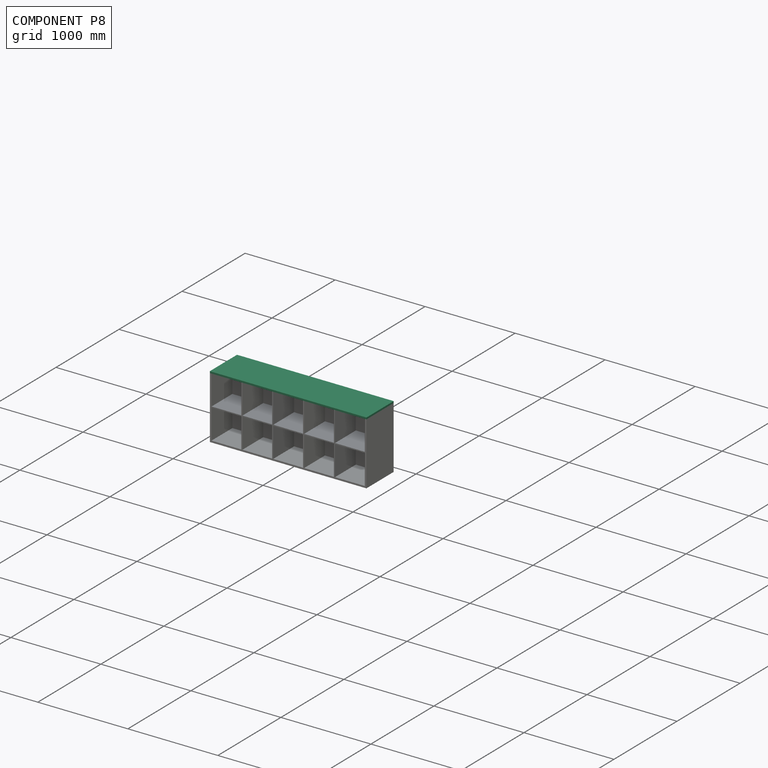
[diagram: component P8 — assembled]
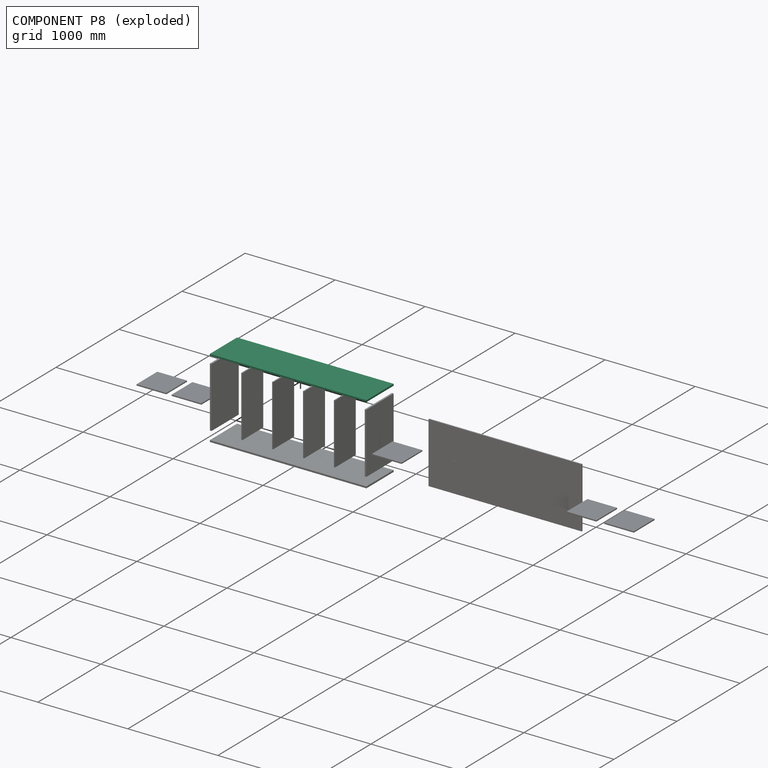
[diagram: component P8 — exploded]
COMPONENT P8 — recipe-attached (CADFS 00973413, mesh-verified: the recipe's output STEP matches this component's geometry to below the mesh-comparison resolution (tessellation chordal tolerance ~2.69 mm)).
Held by: PLANAR mate "Planar 2" to P4; SLIDER mate "Top_right" to P12; SLIDER mate "Top_left" to P2; PLANAR mate "Top surface" to P2.
Construction recipe (FeatureScript — the CAD program that rebuilds this solid; sketch coordinates are in the units given by the * unit suffixes, e.g. mm):

FeatureScript 2105;
import(path : "onshape/std/geometry.fs", version : "2105.0");
import(path : "onshape/std/common.fs", version : "2105.0");
const mm = millimeter;
const VERTEX = EntityType.VERTEX;
const EDGE = EntityType.EDGE;
const FACE = EntityType.FACE;
const BODY = EntityType.BODY;
function v(x, y){return vector(x, y);}
function OD(order){return orderDisambiguation(order);}
function OSD(set){return originalSetDisambiguation(set);}
function TD(topology){return topologyDisambiguation(topology);}
function TDD(query){return trueDependencyDisambiguation(query);}
function sQuery(a, b, c) {return sketchEntityQuery(a, b, c);}

annotation { "Feature Type Name" : "Feature", "Feature Type Description" : "" }
export const myFeature = defineFeature(function(context is Context, id is Id, definition is map)
    precondition{}
    {
        {
            var Q0;
            Q0=qCreatedBy(makeId("Front.planeOp"),FACE);
            var sketch = newSketch(context, id + "F0", { "sketchPlane" : qUnion([Q0])});
            skLineSegment(sketch, "E0.bottom", {"start": v(0, 19.05) * mm, "end": v(1739.9, 19.05) * mm});
            skLineSegment(sketch, "E0.top", {"start": v(0, 0) * mm, "end": v(1739.9, 0) * mm});
            skLineSegment(sketch, "E0.left", {"start": v(0, 19.05) * mm, "end": v(0, 0) * mm});
            skLineSegment(sketch, "E0.right", {"start": v(1739.9, 19.05) * mm, "end": v(1739.9, 0) * mm});
            skSolve(sketch);
        }
        {
            var Q0;
            Q0=qSketchRegion(id+"F0",true);
            extrude(context, id + "F1", {"entities" : qUnion([Q0]), "oppositeDirection" : true, "depth" : 431.8 * mm, "offsetDistance" : 25.4 * mm});
        }
        {
            var Q0;
            Q0=makeQuery(id+"F1.opExtrude","SWEPT_FACE",FACE,{"disambiguationData":[OSD([sQuery(id+"F0.wireOp",EDGE,"E0.top")])]});
            var sketch = newSketch(context, id + "F2", { "sketchPlane" : qUnion([Q0])});
            skCircle(sketch, "E1", {"center": v(1730.38, -381) * mm, "radius": 3.18 * mm});
            skCircle(sketch, "E2", {"center": v(1730.38, -215.9) * mm, "radius": 3.18 * mm});
            skCircle(sketch, "E3", {"center": v(1730.38, -50.8) * mm, "radius": 3.18 * mm});
            skCircle(sketch, "E4", {"center": v(9.53, -381) * mm, "radius": 3.18 * mm});
            skCircle(sketch, "E5", {"center": v(9.53, -215.9) * mm, "radius": 3.18 * mm});
            skCircle(sketch, "E6", {"center": v(9.52, -50.8) * mm, "radius": 3.18 * mm});
            skCircle(sketch, "E7", {"center": v(1384.3, -50.8) * mm, "radius": 3.18 * mm});
            skCircle(sketch, "E8", {"center": v(1384.3, -279.4) * mm, "radius": 3.18 * mm});
            skCircle(sketch, "E9", {"center": v(698.5, -50.8) * mm, "radius": 3.18 * mm});
            skCircle(sketch, "E10", {"center": v(355.6, -279.4) * mm, "radius": 3.18 * mm});
            skCircle(sketch, "E11", {"center": v(698.5, -279.4) * mm, "radius": 3.18 * mm});
            skCircle(sketch, "E12", {"center": v(1041.4, -50.8) * mm, "radius": 3.18 * mm});
            skCircle(sketch, "E13", {"center": v(1041.4, -279.4) * mm, "radius": 3.18 * mm});
            skCircle(sketch, "E14", {"center": v(355.6, -50.8) * mm, "radius": 3.18 * mm});
            skSolve(sketch);
        }
        {
            var Q0;
            Q0 = qSketchRegion(id + "F2", true);
            extrude(context, id + "F3", {"entities" : qUnion([Q0]), "operationType" : NewBodyOperationType.REMOVE, "oppositeDirection" : true, "depth" : 9.52 * mm, "offsetDistance" : 25.4 * mm});
        }
        {
            var Q0;
            Q0=makeQuery(id+"F1.opExtrude","SWEPT_FACE",FACE,{"disambiguationData":[OSD([sQuery(id+"F0.wireOp",EDGE,"E0.top")])]});
            var sketch = newSketch(context, id + "F4", { "sketchPlane" : qUnion([Q0])});
            skLineSegment(sketch, "E15.bottom", {"start": v(1682.75, -292.1) * mm, "end": v(1428.75, -292.1) * mm});
            skLineSegment(sketch, "E15.top", {"start": v(1682.75, -38.1) * mm, "end": v(1428.75, -38.1) * mm});
            skLineSegment(sketch, "E15.left", {"start": v(1682.75, -292.1) * mm, "end": v(1682.75, -38.1) * mm});
            skLineSegment(sketch, "E15.right", {"start": v(1428.75, -292.1) * mm, "end": v(1428.75, -38.1) * mm});
            skLineSegment(sketch, "E16.bottom", {"start": v(1673.23, -282.58) * mm, "end": v(1438.28, -282.58) * mm});
            skLineSegment(sketch, "E16.top", {"start": v(1673.23, -47.62) * mm, "end": v(1438.28, -47.63) * mm});
            skLineSegment(sketch, "E16.left", {"start": v(1673.23, -282.57) * mm, "end": v(1673.23, -47.62) * mm});
            skLineSegment(sketch, "E16.right", {"start": v(1438.28, -282.58) * mm, "end": v(1438.28, -47.63) * mm});
            skLineSegment(sketch, "E17.bottom", {"start": v(1339.85, -292.1) * mm, "end": v(1085.85, -292.1) * mm});
            skLineSegment(sketch, "E17.top", {"start": v(1339.85, -38.1) * mm, "end": v(1085.85, -38.1) * mm});
            skLineSegment(sketch, "E17.left", {"start": v(1339.85, -292.1) * mm, "end": v(1339.85, -38.1) * mm});
            skLineSegment(sketch, "E17.right", {"start": v(1085.85, -292.1) * mm, "end": v(1085.85, -38.1) * mm});
            skLineSegment(sketch, "E18.bottom", {"start": v(1330.33, -282.58) * mm, "end": v(1095.38, -282.58) * mm});
            skLineSegment(sketch, "E18.top", {"start": v(1330.33, -47.63) * mm, "end": v(1095.38, -47.63) * mm});
            skLineSegment(sketch, "E18.left", {"start": v(1330.33, -282.58) * mm, "end": v(1330.33, -47.63) * mm});
            skLineSegment(sketch, "E18.right", {"start": v(1095.38, -282.58) * mm, "end": v(1095.38, -47.63) * mm});
            skLineSegment(sketch, "E19.bottom", {"start": v(996.95, -292.1) * mm, "end": v(742.95, -292.1) * mm});
            skLineSegment(sketch, "E19.top", {"start": v(996.95, -38.1) * mm, "end": v(742.95, -38.1) * mm});
            skLineSegment(sketch, "E19.left", {"start": v(996.95, -292.1) * mm, "end": v(996.95, -38.1) * mm});
            skLineSegment(sketch, "E19.right", {"start": v(742.95, -292.1) * mm, "end": v(742.95, -38.1) * mm});
            skLineSegment(sketch, "E20.bottom", {"start": v(987.43, -282.58) * mm, "end": v(752.48, -282.58) * mm});
            skLineSegment(sketch, "E20.top", {"start": v(987.43, -47.63) * mm, "end": v(752.48, -47.63) * mm});
            skLineSegment(sketch, "E20.left", {"start": v(987.43, -282.58) * mm, "end": v(987.43, -47.63) * mm});
            skLineSegment(sketch, "E20.right", {"start": v(752.48, -282.58) * mm, "end": v(752.48, -47.63) * mm});
            skLineSegment(sketch, "E21.bottom", {"start": v(654.05, -292.1) * mm, "end": v(400.05, -292.1) * mm});
            skLineSegment(sketch, "E21.top", {"start": v(654.05, -38.1) * mm, "end": v(400.05, -38.1) * mm});
            skLineSegment(sketch, "E21.left", {"start": v(654.05, -292.1) * mm, "end": v(654.05, -38.1) * mm});
            skLineSegment(sketch, "E21.right", {"start": v(400.05, -292.1) * mm, "end": v(400.05, -38.1) * mm});
            skLineSegment(sketch, "E22.bottom", {"start": v(644.53, -282.58) * mm, "end": v(409.58, -282.58) * mm});
            skLineSegment(sketch, "E22.top", {"start": v(644.53, -47.63) * mm, "end": v(409.58, -47.63) * mm});
            skLineSegment(sketch, "E22.left", {"start": v(644.53, -282.57) * mm, "end": v(644.53, -47.62) * mm});
            skLineSegment(sketch, "E22.right", {"start": v(409.58, -282.58) * mm, "end": v(409.58, -47.62) * mm});
            skLineSegment(sketch, "E23.bottom", {"start": v(311.15, -292.1) * mm, "end": v(57.15, -292.1) * mm});
            skLineSegment(sketch, "E23.top", {"start": v(311.15, -38.1) * mm, "end": v(57.15, -38.1) * mm});
            skLineSegment(sketch, "E23.left", {"start": v(311.15, -292.1) * mm, "end": v(311.15, -38.1) * mm});
            skLineSegment(sketch, "E23.right", {"start": v(57.15, -292.1) * mm, "end": v(57.15, -38.1) * mm});
            skLineSegment(sketch, "E24.bottom", {"start": v(301.63, -282.58) * mm, "end": v(66.68, -282.58) * mm});
            skLineSegment(sketch, "E24.top", {"start": v(301.63, -47.63) * mm, "end": v(66.68, -47.63) * mm});
            skLineSegment(sketch, "E24.left", {"start": v(301.63, -282.57) * mm, "end": v(301.63, -47.63) * mm});
            skLineSegment(sketch, "E24.right", {"start": v(66.68, -282.58) * mm, "end": v(66.68, -47.63) * mm});
            skLineSegment(sketch, "E25.bottom", {"start": v(1682.75, -368.3) * mm, "end": v(1673.23, -368.3) * mm});
            skLineSegment(sketch, "E25.top", {"start": v(1682.75, -292.1) * mm, "end": v(1673.23, -292.1) * mm});
            skLineSegment(sketch, "E25.left", {"start": v(1682.75, -368.3) * mm, "end": v(1682.75, -292.1) * mm});
            skLineSegment(sketch, "E25.right", {"start": v(1673.23, -368.3) * mm, "end": v(1673.23, -292.1) * mm});
            skLineSegment(sketch, "E26.bottom", {"start": v(1339.85, -368.3) * mm, "end": v(1330.33, -368.3) * mm});
            skLineSegment(sketch, "E26.top", {"start": v(1339.85, -292.1) * mm, "end": v(1330.33, -292.1) * mm});
            skLineSegment(sketch, "E26.left", {"start": v(1339.85, -368.3) * mm, "end": v(1339.85, -292.1) * mm});
            skLineSegment(sketch, "E26.right", {"start": v(1330.33, -368.3) * mm, "end": v(1330.33, -292.1) * mm});
            skLineSegment(sketch, "E27.bottom", {"start": v(996.95, -368.3) * mm, "end": v(987.43, -368.3) * mm});
            skLineSegment(sketch, "E27.top", {"start": v(996.95, -292.1) * mm, "end": v(987.43, -292.1) * mm});
            skLineSegment(sketch, "E27.left", {"start": v(996.95, -368.3) * mm, "end": v(996.95, -292.1) * mm});
            skLineSegment(sketch, "E27.right", {"start": v(987.43, -368.3) * mm, "end": v(987.43, -292.1) * mm});
            skLineSegment(sketch, "E28.bottom", {"start": v(654.05, -368.3) * mm, "end": v(644.53, -368.3) * mm});
            skLineSegment(sketch, "E28.top", {"start": v(654.05, -292.1) * mm, "end": v(644.53, -292.1) * mm});
            skLineSegment(sketch, "E28.left", {"start": v(654.05, -368.3) * mm, "end": v(654.05, -292.1) * mm});
            skLineSegment(sketch, "E28.right", {"start": v(644.53, -368.3) * mm, "end": v(644.53, -292.1) * mm});
            skLineSegment(sketch, "E29.bottom", {"start": v(311.15, -368.3) * mm, "end": v(301.63, -368.3) * mm});
            skLineSegment(sketch, "E29.top", {"start": v(311.15, -292.1) * mm, "end": v(301.63, -292.1) * mm});
            skLineSegment(sketch, "E29.left", {"start": v(311.15, -368.3) * mm, "end": v(311.15, -292.1) * mm});
            skLineSegment(sketch, "E29.right", {"start": v(301.63, -368.3) * mm, "end": v(301.63, -292.1) * mm});
            skSolve(sketch);
        }
        {
            var Q0;
            Q0 = qSketchRegion(id + "F4", true);
            extrude(context, id + "F5", {"entities" : qUnion([Q0]), "operationType" : NewBodyOperationType.REMOVE, "oppositeDirection" : true, "depth" : 3.17 * mm, "offsetDistance" : 25.4 * mm});
        }
    });
